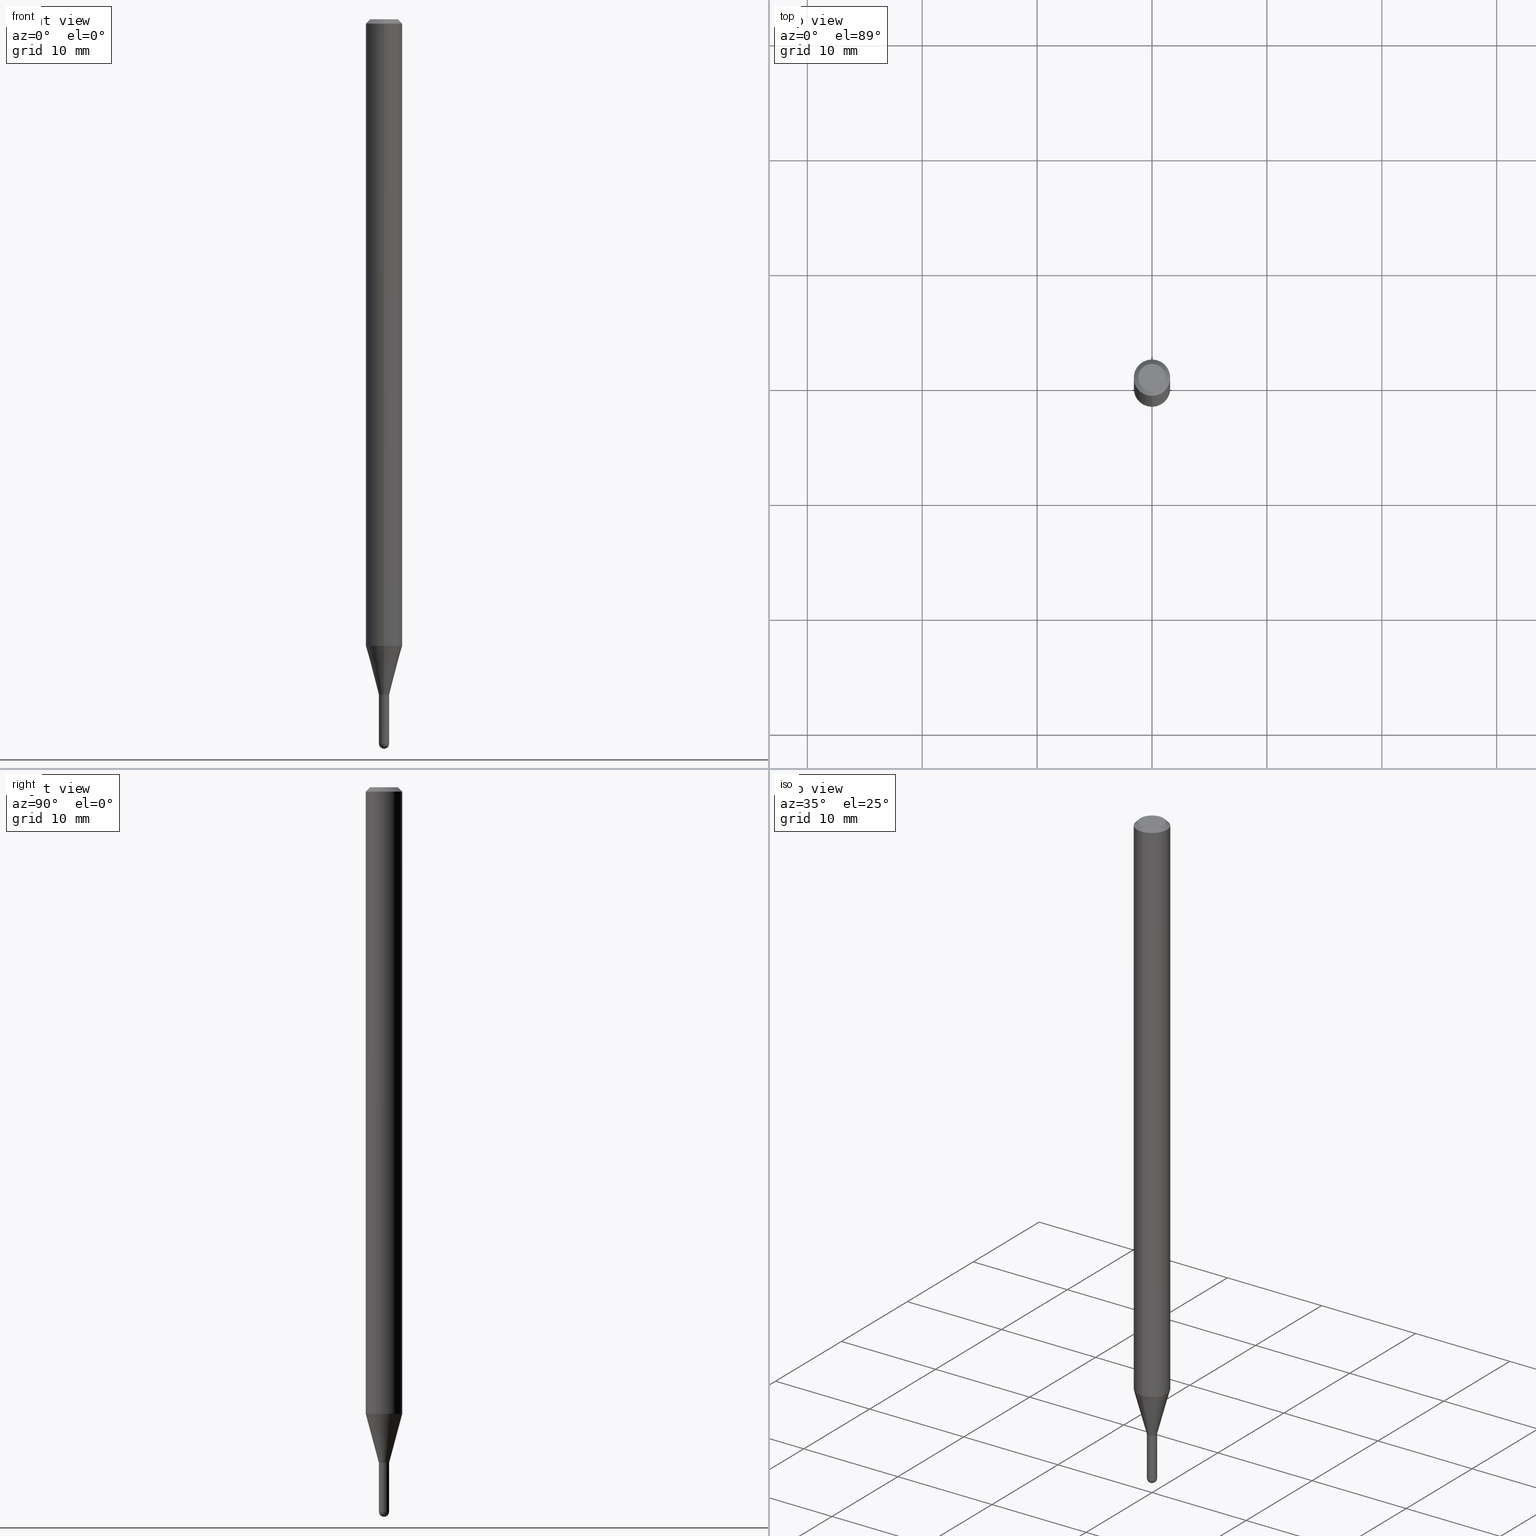
[diagram: canonical four-view strip — front | top / right | iso, engineering-drawing reading convention]
A machine part, canonical four-view strip (front | top / right | iso — engineering-drawing reading convention). The complete STEP part file that produces these views, byte-faithful:
ISO-10303-21;
HEADER;
FILE_DESCRIPTION (( 'STEP AP203' ),
    '1' );
FILE_NAME ('00958.STEP',
    '2024-03-07T19:13:39',
    ( '' ),
    ( '' ),
    'SwSTEP 2.0',
    'SolidWorks 2023',
    '' );
FILE_SCHEMA (( 'CONFIG_CONTROL_DESIGN' ));
ENDSEC;

DATA;
#1 = ADVANCED_FACE ( 'NONE', ( #255 ), #62, .T. ) ;
#2 = DIRECTION ( 'NONE',  ( -2.445468806185136597E-29, 3.491481338843145583E-15, 1.000000000000000000 ) ) ;
#3 = CC_DESIGN_APPROVAL ( #122, ( #225 ) ) ;
#4 = CARTESIAN_POINT ( 'NONE',  ( 6.070876311354603530E-29, -8.667602423678111529E-15, -2.482500000000000817 ) ) ;
#5 = ORIENTED_EDGE ( 'NONE', *, *, #463, .T. ) ;
#6 = PERSON_AND_ORGANIZATION ( #222, #326 ) ;
#7 = AXIS2_PLACEMENT_3D ( 'NONE', #343, #67, #501 ) ;
#8 = CARTESIAN_POINT ( 'NONE',  ( 5.661330320498851660E-29, -8.082679006489650230E-15, -2.314999999999999947 ) ) ;
#9 = VERTEX_POINT ( 'NONE', #303 ) ;
#10 = LINE ( 'NONE', #284, #259 ) ;
#11 = ORIENTED_EDGE ( 'NONE', *, *, #497, .F. ) ;
#12 = CC_DESIGN_SECURITY_CLASSIFICATION ( #225, ( #120 ) ) ;
#13 = CARTESIAN_POINT ( 'NONE',  ( -1.222018468594507938E-16, -0.01750000000000782874, -2.324500000000000455 ) ) ;
#14 = VERTEX_POINT ( 'NONE', #65 ) ;
#15 = CARTESIAN_POINT ( 'NONE',  ( -1.187103655206096848E-16, -0.01700000000000811973, -2.324999999999999734 ) ) ;
#16 = CIRCLE ( 'NONE', #117, 0.01749999999999965472 ) ;
#17 = ORIENTED_EDGE ( 'NONE', *, *, #56, .T. ) ;
#18 = AXIS2_PLACEMENT_3D ( 'NONE', #25, #379, #300 ) ;
#19 = COORDINATED_UNIVERSAL_TIME_OFFSET ( 5, 0, .BEHIND. ) ;
#20 = ORIENTED_EDGE ( 'NONE', *, *, #276, .T. ) ;
#21 = AXIS2_PLACEMENT_3D ( 'NONE', #296, #373, #97 ) ;
#22 = CARTESIAN_POINT ( 'NONE',  ( 3.668248587796234838E-31, -5.237157023643405199E-17, -0.01500000000000000812 ) ) ;
#23 = PRODUCT_RELATED_PRODUCT_CATEGORY ( 'detail', '', ( #426 ) ) ;
#24 = DIRECTION ( 'NONE',  ( -2.445499058530821695E-29, 3.491438015762267766E-15, 1.000000000000000000 ) ) ;
#25 = CARTESIAN_POINT ( 'NONE',  ( 5.685785311084159930E-29, -8.117593386647272142E-15, -2.324999999999999734 ) ) ;
#26 = CIRCLE ( 'NONE', #313, 0.01750000000000000167 ) ;
#27 = DIRECTION ( 'NONE',  ( 1.000000000000000000, 0.000000000000000000, 0.000000000000000000 ) ) ;
#28 = EDGE_CURVE ( 'NONE', #399, #374, #504, .T. ) ;
#29 = EDGE_LOOP ( 'NONE', ( #365, #183, #488, #243, #204 ) ) ;
#30 = APPROVAL_PERSON_ORGANIZATION ( #6, #122, #460 ) ;
#31 = DIRECTION ( 'NONE',  ( 6.982962677686265922E-15, 1.000000000000000000, 0.000000000000000000 ) ) ;
#32 = CARTESIAN_POINT ( 'NONE',  ( 5.685785311084159930E-29, -8.117593386647272142E-15, -2.324999999999999734 ) ) ;
#33 = PERSON_AND_ORGANIZATION ( #222, #326 ) ;
#34 = DIRECTION ( 'NONE',  ( -6.982962677686265922E-15, -1.000000000000000000, 3.491438015762267766E-15 ) ) ;
#35 = CIRCLE ( 'NONE', #369, 0.01750000000000001207 ) ;
#36 = VECTOR ( 'NONE', #240, 39.37007874015748143 ) ;
#37 = DIRECTION ( 'NONE',  ( -2.445499058530821695E-29, 3.491438015762267766E-15, 1.000000000000000000 ) ) ;
#38 = ORIENTED_EDGE ( 'NONE', *, *, #164, .F. ) ;
#39 = EDGE_CURVE ( 'NONE', #410, #397, #150, .T. ) ;
#40 = VECTOR ( 'NONE', #138, 39.37007874015748143 ) ;
#41 = DIRECTION ( 'NONE',  ( 1.000000000000000000, -6.982962677686303787E-15, 0.000000000000000000 ) ) ;
#42 = ORIENTED_EDGE ( 'NONE', *, *, #422, .F. ) ;
#43 = DIRECTION ( 'NONE',  ( -2.445468806185136597E-29, 3.491481338843145583E-15, 1.000000000000000000 ) ) ;
#44 = AXIS2_PLACEMENT_3D ( 'NONE', #274, #2, #317 ) ;
#45 = DIRECTION ( 'NONE',  ( -2.445499058530821695E-29, 3.491438015762267766E-15, 1.000000000000000000 ) ) ;
#46 = EDGE_CURVE ( 'NONE', #196, #9, #339, .T. ) ;
#47 = CARTESIAN_POINT ( 'NONE',  ( 1.207922650792738876E-16, 0.01699999999999188618, -2.324999999999999734 ) ) ;
#48 = LOCAL_TIME ( 14, 13, 39.00000000000000000, #118 ) ;
#49 = EDGE_LOOP ( 'NONE', ( #486, #96, #38, #324 ) ) ;
#50 = COORDINATED_UNIVERSAL_TIME_OFFSET ( 5, 0, .BEHIND. ) ;
#51 = DIRECTION ( 'NONE',  ( 1.000000000000000000, -6.982962677686303787E-15, 0.000000000000000000 ) ) ;
#52 = ORIENTED_EDGE ( 'NONE', *, *, #66, .T. ) ;
#53 = PERSON_AND_ORGANIZATION ( #222, #326 ) ;
#54 = FACE_OUTER_BOUND ( 'NONE', #510, .T. ) ;
#55 = VERTEX_POINT ( 'NONE', #213 ) ;
#56 = EDGE_CURVE ( 'NONE', #9, #196, #237, .T. ) ;
#57 = DIRECTION ( 'NONE',  ( -2.445468806185136597E-29, 3.491481338843145583E-15, 1.000000000000000000 ) ) ;
#58 = ORIENTED_EDGE ( 'NONE', *, *, #46, .T. ) ;
#59 = LINE ( 'NONE', #129, #104 ) ;
#60 = VERTEX_POINT ( 'NONE', #256 ) ;
#61 = APPROVAL_STATUS ( 'not_yet_approved' ) ;
#62 = CONICAL_SURFACE ( 'NONE', #193, 0.01700000000000000122, 0.7853981633974739252 ) ;
#63 = ORIENTED_EDGE ( 'NONE', *, *, #77, .T. ) ;
#64 = DIRECTION ( 'NONE',  ( -6.982962677686265922E-15, -1.000000000000000000, 3.491438015762267766E-15 ) ) ;
#65 = CARTESIAN_POINT ( 'NONE',  ( 0.01750000000000000513, -8.514850115103722472E-15, -2.482500000000000817 ) ) ;
#66 = EDGE_CURVE ( 'NONE', #248, #381, #219, .T. ) ;
#67 = DIRECTION ( 'NONE',  ( -2.445499058530821695E-29, 3.491438015762267766E-15, 1.000000000000000000 ) ) ;
#68 = CARTESIAN_POINT ( 'NONE',  ( 0.000000000000000000, 0.000000000000000000, 0.000000000000000000 ) ) ;
#69 = LINE ( 'NONE', #428, #289 ) ;
#70 = AXIS2_PLACEMENT_3D ( 'NONE', #268, #75, #509 ) ;
#71 = DIRECTION ( 'NONE',  ( 0.000000000000000000, 0.000000000000000000, 1.000000000000000000 ) ) ;
#72 = EDGE_LOOP ( 'NONE', ( #220, #200, #11, #438, #250 ) ) ;
#73 = DIRECTION ( 'NONE',  ( -7.105427357601000281E-15, -1.000000000000000000, 0.000000000000000000 ) ) ;
#74 = COORDINATED_UNIVERSAL_TIME_OFFSET ( 5, 0, .BEHIND. ) ;
#75 = DIRECTION ( 'NONE',  ( -2.445499058530821695E-29, 3.491438015762267766E-15, 1.000000000000000000 ) ) ;
#76 = ORIENTED_EDGE ( 'NONE', *, *, #187, .F. ) ;
#77 = EDGE_CURVE ( 'NONE', #381, #248, #236, .T. ) ;
#78 = CARTESIAN_POINT ( 'NONE',  ( -0.01750000000000000167, -8.268303289486194452E-15, -2.325000000000000178 ) ) ;
#79 = CC_DESIGN_PERSON_AND_ORGANIZATION_ASSIGNMENT ( #184, #128, ( #120 ) ) ;
#80 = CARTESIAN_POINT ( 'NONE',  ( 4.440892098501148782E-16, 0.06249999999999247824, -2.147057713659400235 ) ) ;
#81 = EDGE_CURVE ( 'NONE', #329, #94, #125, .T. ) ;
#82 = CARTESIAN_POINT ( 'NONE',  ( -1.222018468594506458E-16, -0.01750000000000773853, -2.314999999999999947 ) ) ;
#83 = AXIS2_PLACEMENT_3D ( 'NONE', #22, #180, #108 ) ;
#84 = DIRECTION ( 'NONE',  ( 6.982962677686265922E-15, 1.000000000000000000, -3.491438015762267766E-15 ) ) ;
#85 = CIRCLE ( 'NONE', #254, 0.01749999999999965472 ) ;
#86 = DIRECTION ( 'NONE',  ( 5.024295867788190974E-15, 0.7071067811865681119, 0.7071067811865270336 ) ) ;
#87 = ORIENTED_EDGE ( 'NONE', *, *, #81, .F. ) ;
#88 = CALENDAR_DATE ( 2024, 7, 3 ) ;
#89 = CARTESIAN_POINT ( 'NONE',  ( 1.222018468595665098E-16, 0.01749999999999188316, -2.325000000000000178 ) ) ;
#90 = ORIENTED_EDGE ( 'NONE', *, *, #77, .F. ) ;
#91 = AXIS2_PLACEMENT_3D ( 'NONE', #277, #203, #327 ) ;
#92 = CIRCLE ( 'NONE', #471, 0.01750000000000000167 ) ;
#93 = DIRECTION ( 'NONE',  ( -2.445499058530821695E-29, 3.491438015762267766E-15, 1.000000000000000000 ) ) ;
#94 = VERTEX_POINT ( 'NONE', #144 ) ;
#95 = DIRECTION ( 'NONE',  ( -6.982962677686265922E-15, -1.000000000000000000, 3.491438015762267766E-15 ) ) ;
#96 = ORIENTED_EDGE ( 'NONE', *, *, #39, .T. ) ;
#97 = DIRECTION ( 'NONE',  ( 1.000000000000000000, -6.982962677686248567E-15, 0.000000000000000000 ) ) ;
#98 = VERTEX_POINT ( 'NONE', #462 ) ;
#99 =( NAMED_UNIT ( * ) SI_UNIT ( $, .STERADIAN. ) SOLID_ANGLE_UNIT ( ) );
#100 = CC_DESIGN_PERSON_AND_ORGANIZATION_ASSIGNMENT ( #357, #468, ( #225 ) ) ;
#101 = CYLINDRICAL_SURFACE ( 'NONE', #391, 0.01749999999999965472 ) ;
#102 = DIRECTION ( 'NONE',  ( -2.445499058530821415E-29, 3.491438015762267766E-15, 1.000000000000000000 ) ) ;
#103 = ORIENTED_EDGE ( 'NONE', *, *, #478, .T. ) ;
#104 = VECTOR ( 'NONE', #242, 39.37007874015748143 ) ;
#105 = LENGTH_MEASURE_WITH_UNIT ( LENGTH_MEASURE( 0.02539999999999999897 ), #445 );
#106 = CARTESIAN_POINT ( 'NONE',  ( 0.000000000000000000, 0.000000000000000000, 0.000000000000000000 ) ) ;
#107 = MECHANICAL_CONTEXT ( 'NONE', #448, 'mechanical' ) ;
#108 = DIRECTION ( 'NONE',  ( -6.982962677686265922E-15, -1.000000000000000000, 3.483106191921935554E-15 ) ) ;
#109 = APPLICATION_CONTEXT ( 'configuration controlled 3d designs of mechanical parts and assemblies' ) ;
#110 = DIRECTION ( 'NONE',  ( -2.445499058530821695E-29, 3.491438015762267766E-15, 1.000000000000000000 ) ) ;
#111 = LOCAL_TIME ( 14, 13, 39.00000000000000000, #50 ) ;
#112 = EDGE_CURVE ( 'NONE', #98, #362, #16, .T. ) ;
#113 = FACE_OUTER_BOUND ( 'NONE', #318, .T. ) ;
#114 = DATE_AND_TIME ( #483, #464 ) ;
#115 = FACE_OUTER_BOUND ( 'NONE', #29, .T. ) ;
#116 = CC_DESIGN_DATE_AND_TIME_ASSIGNMENT ( #198, #188, ( #225 ) ) ;
#117 = AXIS2_PLACEMENT_3D ( 'NONE', #175, #110, #335 ) ;
#118 = COORDINATED_UNIVERSAL_TIME_OFFSET ( 5, 0, .BEHIND. ) ;
#119 = DIRECTION ( 'NONE',  ( 1.000000000000000000, -6.982962677686303787E-15, 0.000000000000000000 ) ) ;
#120 = PRODUCT_DEFINITION_FORMATION_WITH_SPECIFIED_SOURCE ( 'ANY', '', #426, .NOT_KNOWN. ) ;
#121 = DIRECTION ( 'NONE',  ( -1.000000000000000000, 7.105427357601001070E-15, -4.926315508542082329E-29 ) ) ;
#122 = APPROVAL ( #162, 'UNSPECIFIED' ) ;
#123 = CARTESIAN_POINT ( 'NONE',  ( -0.01750000000000000167, 1.243449787580175444E-16, -8.608136407946085539E-31 ) ) ;
#124 = ORIENTED_EDGE ( 'NONE', *, *, #328, .F. ) ;
#125 = CIRCLE ( 'NONE', #430, 0.01749999999999965472 ) ;
#126 = CARTESIAN_POINT ( 'NONE',  ( 3.316907271900976096E-16, 0.04749999999999999362, -1.702744944677941108E-16 ) ) ;
#127 = ORIENTED_EDGE ( 'NONE', *, *, #368, .T. ) ;
#128 = PERSON_AND_ORGANIZATION_ROLE ( 'design_supplier' ) ;
#129 = CARTESIAN_POINT ( 'NONE',  ( -1.187103655206096848E-16, -0.01700000000000811973, -2.324999999999999734 ) ) ;
#130 = ADVANCED_FACE ( 'NONE', ( #495 ), #101, .T. ) ;
#131 = VERTEX_POINT ( 'NONE', #252 ) ;
#132 = LINE ( 'NONE', #208, #467 ) ;
#133 = EDGE_LOOP ( 'NONE', ( #402, #423, #90, #76 ) ) ;
#134 = DIRECTION ( 'NONE',  ( -6.982962677686265922E-15, -1.000000000000000000, 3.491438015762267766E-15 ) ) ;
#135 = ADVANCED_BREP_SHAPE_REPRESENTATION ( '00958', ( #450, #461, #363 ), #230 ) ;
#136 = ORIENTED_EDGE ( 'NONE', *, *, #81, .T. ) ;
#137 = EDGE_CURVE ( 'NONE', #98, #248, #69, .T. ) ;
#138 = DIRECTION ( 'NONE',  ( -2.445499058530821695E-29, 3.491438015762267766E-15, 1.000000000000000000 ) ) ;
#139 = ORIENTED_EDGE ( 'NONE', *, *, #474, .F. ) ;
#140 = APPROVAL_DATE_TIME ( #494, #246 ) ;
#141 = ORIENTED_EDGE ( 'NONE', *, *, #171, .F. ) ;
#142 = AXIS2_PLACEMENT_3D ( 'NONE', #260, #340, #449 ) ;
#143 = DIRECTION ( 'NONE',  ( -6.982962677686265922E-15, -1.000000000000000000, 0.000000000000000000 ) ) ;
#144 = CARTESIAN_POINT ( 'NONE',  ( 1.243449787580714581E-16, 0.01749999999999148070, -2.324500000000000455 ) ) ;
#145 = EDGE_CURVE ( 'NONE', #94, #98, #465, .T. ) ;
#146 = FACE_OUTER_BOUND ( 'NONE', #371, .T. ) ;
#147 = DIRECTION ( 'NONE',  ( -2.445499058530821695E-29, 3.491438015762267766E-15, 1.000000000000000000 ) ) ;
#148 = DATE_AND_TIME ( #88, #316 ) ;
#149 = DIRECTION ( 'NONE',  ( -6.982962677686265133E-15, -1.000000000000000000, 0.000000000000000000 ) ) ;
#150 = CIRCLE ( 'NONE', #201, 0.01750000000000001207 ) ;
#151 = ADVANCED_FACE ( 'NONE', ( #113 ), #351, .T. ) ;
#152 = CC_DESIGN_APPROVAL ( #246, ( #281 ) ) ;
#153 = AXIS2_PLACEMENT_3D ( 'NONE', #411, #409, #31 ) ;
#154 = FACE_OUTER_BOUND ( 'NONE', #215, .T. ) ;
#155 = FACE_OUTER_BOUND ( 'NONE', #166, .T. ) ;
#156 = AXIS2_PLACEMENT_3D ( 'NONE', #385, #427, #34 ) ;
#157 = DIRECTION ( 'NONE',  ( -6.982962677686265922E-15, -1.000000000000000000, 0.000000000000000000 ) ) ;
#158 = LINE ( 'NONE', #82, #384 ) ;
#159 = VERTEX_POINT ( 'NONE', #226 ) ;
#160 = FACE_OUTER_BOUND ( 'NONE', #356, .T. ) ;
#161 = ORIENTED_EDGE ( 'NONE', *, *, #28, .T. ) ;
#162 = APPROVAL_STATUS ( 'not_yet_approved' ) ;
#163 = AXIS2_PLACEMENT_3D ( 'NONE', #348, #43, #119 ) ;
#164 = EDGE_CURVE ( 'NONE', #14, #397, #479, .T. ) ;
#165 = DIRECTION ( 'NONE',  ( -6.982962677686265922E-15, -1.000000000000000000, 0.000000000000000000 ) ) ;
#166 = EDGE_LOOP ( 'NONE', ( #42, #52, #446, #331 ) ) ;
#167 = CARTESIAN_POINT ( 'NONE',  ( 0.000000000000000000, 0.000000000000000000, 0.000000000000000000 ) ) ;
#168 = VERTEX_POINT ( 'NONE', #78 ) ;
#169 = FACE_OUTER_BOUND ( 'NONE', #412, .T. ) ;
#170 = EDGE_LOOP ( 'NONE', ( #136, #376, #124, #228 ) ) ;
#171 = EDGE_CURVE ( 'NONE', #397, #55, #92, .T. ) ;
#172 = CARTESIAN_POINT ( 'NONE',  ( -4.364351673553391609E-16, -0.06250000000000749401, -2.147057713659399347 ) ) ;
#173 = ORIENTED_EDGE ( 'NONE', *, *, #434, .T. ) ;
#174 = CALENDAR_DATE ( 2024, 7, 3 ) ;
#175 = CARTESIAN_POINT ( 'NONE',  ( 5.661330320498851660E-29, -8.082679006489650230E-15, -2.314999999999999947 ) ) ;
#176 = DIMENSIONAL_EXPONENTS ( 1.000000000000000000, 0.000000000000000000, 0.000000000000000000, 0.000000000000000000, 0.000000000000000000, 0.000000000000000000, 0.000000000000000000 ) ;
#177 = DIRECTION ( 'NONE',  ( -2.445499058530821695E-29, 3.491438015762267766E-15, 1.000000000000000000 ) ) ;
#178 = DIRECTION ( 'NONE',  ( -6.982962677686265922E-15, -1.000000000000000000, 3.491438015762267766E-15 ) ) ;
#179 = CIRCLE ( 'NONE', #306, 0.04749999999999999362 ) ;
#180 = DIRECTION ( 'NONE',  ( -2.445499058530821695E-29, 3.491438015762267766E-15, 1.000000000000000000 ) ) ;
#181 = CARTESIAN_POINT ( 'NONE',  ( 4.440892098500625669E-16, 0.06250000000000000000, -2.182148759851417354E-16 ) ) ;
#182 = ORIENTED_EDGE ( 'NONE', *, *, #368, .F. ) ;
#183 = ORIENTED_EDGE ( 'NONE', *, *, #288, .T. ) ;
#184 = PERSON_AND_ORGANIZATION ( #222, #326 ) ;
#185 = DIRECTION ( 'NONE',  ( 6.982962677686265922E-15, 1.000000000000000000, 0.000000000000000000 ) ) ;
#186 = AXIS2_PLACEMENT_3D ( 'NONE', #232, #388, #314 ) ;
#187 = EDGE_CURVE ( 'NONE', #362, #381, #158, .T. ) ;
#188 = DATE_TIME_ROLE ( 'classification_date' ) ;
#189 = CYLINDRICAL_SURFACE ( 'NONE', #400, 0.01750000000000000167 ) ;
#190 = SECURITY_CLASSIFICATION_LEVEL ( 'unclassified' ) ;
#191 = DIRECTION ( 'NONE',  ( -2.445499058530821695E-29, 3.491438015762267766E-15, 1.000000000000000000 ) ) ;
#192 = DIRECTION ( 'NONE',  ( 1.000000000000000000, -6.982962677686265922E-15, 4.876176775795936353E-29 ) ) ;
#193 = AXIS2_PLACEMENT_3D ( 'NONE', #32, #147, #143 ) ;
#194 = CARTESIAN_POINT ( 'NONE',  ( 4.440892098501154699E-16, 0.06249999999999995143, -0.01500000000000022669 ) ) ;
#195 = DIRECTION ( 'NONE',  ( -2.445468806185136877E-29, 3.491481338843145188E-15, 1.000000000000000000 ) ) ;
#196 = VERTEX_POINT ( 'NONE', #194 ) ;
#197 = EDGE_CURVE ( 'NONE', #60, #14, #212, .T. ) ;
#198 = DATE_AND_TIME ( #261, #111 ) ;
#199 = DIRECTION ( 'NONE',  ( 2.438088387897960049E-29, -3.491481338843145188E-15, -1.000000000000000000 ) ) ;
#200 = ORIENTED_EDGE ( 'NONE', *, *, #315, .T. ) ;
#201 = AXIS2_PLACEMENT_3D ( 'NONE', #294, #459, #298 ) ;
#202 = ADVANCED_FACE ( 'NONE', ( #115 ), #473, .T. ) ;
#203 = DIRECTION ( 'NONE',  ( 2.445499058530821695E-29, -3.491438015762267766E-15, -1.000000000000000000 ) ) ;
#204 = ORIENTED_EDGE ( 'NONE', *, *, #253, .F. ) ;
#205 = DIRECTION ( 'NONE',  ( -6.982962677686265133E-15, -1.000000000000000000, 0.000000000000000000 ) ) ;
#206 = ADVANCED_FACE ( 'NONE', ( #234 ), #360, .T. ) ;
#207 = EDGE_LOOP ( 'NONE', ( #435, #285 ) ) ;
#208 = CARTESIAN_POINT ( 'NONE',  ( 4.364351673553919652E-16, 0.06249999999999995143, -0.01500000000000022669 ) ) ;
#209 = ADVANCED_FACE ( 'NONE', ( #353 ), #227, .T. ) ;
#210 = ORIENTED_EDGE ( 'NONE', *, *, #56, .F. ) ;
#211 = CLOSED_SHELL ( 'NONE', ( #130, #1, #383, #352, #206, #151, #231, #216, #319, #489, #257, #336 ) ) ;
#212 = CIRCLE ( 'NONE', #186, 0.01750000000000000167 ) ;
#213 = CARTESIAN_POINT ( 'NONE',  ( -0.01750000000000000513, -8.268303289486194452E-15, -2.482500000000000817 ) ) ;
#214 = LINE ( 'NONE', #447, #40 ) ;
#215 = EDGE_LOOP ( 'NONE', ( #139, #334, #482, #58 ) ) ;
#216 = ADVANCED_FACE ( 'NONE', ( #154 ), #278, .T. ) ;
#217 = ORIENTED_EDGE ( 'NONE', *, *, #474, .T. ) ;
#218 = CARTESIAN_POINT ( 'NONE',  ( 5.685785311084159930E-29, -8.117593386647272142E-15, -2.324999999999999734 ) ) ;
#219 = CIRCLE ( 'NONE', #424, 0.06250000000000000000 ) ;
#220 = ORIENTED_EDGE ( 'NONE', *, *, #171, .T. ) ;
#221 = PERSON_AND_ORGANIZATION ( #222, #326 ) ;
#222 = PERSON ( 'UNSPECIFIED', 'UNSPECIFIED', 'UNSPECIFIED', ('UNSPECIFIED'), ('UNSPECIFIED'), ('UNSPECIFIED') ) ;
#223 = EDGE_CURVE ( 'NONE', #410, #60, #35, .T. ) ;
#224 = ORIENTED_EDGE ( 'NONE', *, *, #389, .F. ) ;
#225 = SECURITY_CLASSIFICATION ( '', '', #190 ) ;
#226 = CARTESIAN_POINT ( 'NONE',  ( 3.840629472727447874E-16, 0.04749999999999999362, -1.747056831868805136E-16 ) ) ;
#227 = SPHERICAL_SURFACE ( 'NONE', #344, 0.01750000000000001207 ) ;
#228 = ORIENTED_EDGE ( 'NONE', *, *, #463, .F. ) ;
#229 = DIRECTION ( 'NONE',  ( -2.445468806185136597E-29, 3.491481338843145583E-15, 1.000000000000000000 ) ) ;
#230 =( GEOMETRIC_REPRESENTATION_CONTEXT ( 3 ) GLOBAL_UNCERTAINTY_ASSIGNED_CONTEXT ( ( #403 ) ) GLOBAL_UNIT_ASSIGNED_CONTEXT ( ( #458, #496, #99 ) ) REPRESENTATION_CONTEXT ( 'NONE', 'WORKASPACE' ) );
#231 = ADVANCED_FACE ( 'NONE', ( #155 ), #390, .T. ) ;
#232 = CARTESIAN_POINT ( 'NONE',  ( 6.070876311354603530E-29, -8.667602423678111529E-15, -2.482500000000000817 ) ) ;
#233 = AXIS2_PLACEMENT_3D ( 'NONE', #502, #177, #452 ) ;
#234 = FACE_OUTER_BOUND ( 'NONE', #133, .T. ) ;
#235 = VECTOR ( 'NONE', #195, 39.37007874015748143 ) ;
#236 = CIRCLE ( 'NONE', #7, 0.06250000000000000000 ) ;
#237 = CIRCLE ( 'NONE', #142, 0.06250000000000000000 ) ;
#238 = CARTESIAN_POINT ( 'NONE',  ( -1.222018468594506458E-16, -0.01750000000000773853, -2.314999999999999947 ) ) ;
#239 = CALENDAR_DATE ( 2024, 7, 3 ) ;
#240 = DIRECTION ( 'NONE',  ( -2.445468806185136877E-29, 3.491481338843145188E-15, 1.000000000000000000 ) ) ;
#241 = ORIENTED_EDGE ( 'NONE', *, *, #112, .F. ) ;
#242 = DIRECTION ( 'NONE',  ( -4.937700262164674260E-15, -0.7071067811865632269, 0.7071067811865319186 ) ) ;
#243 = ORIENTED_EDGE ( 'NONE', *, *, #413, .T. ) ;
#244 = CARTESIAN_POINT ( 'NONE',  ( 1.225686219186729070E-16, 0.01699999999999188618, -2.324999999999999734 ) ) ;
#245 = EDGE_LOOP ( 'NONE', ( #20, #103 ) ) ;
#246 = APPROVAL ( #61, 'UNSPECIFIED' ) ;
#247 = CARTESIAN_POINT ( 'NONE',  ( 0.01750000000000000167, -8.239895959669823433E-15, -2.325000000000000178 ) ) ;
#248 = VERTEX_POINT ( 'NONE', #80 ) ;
#249 = PERSON_AND_ORGANIZATION ( #222, #326 ) ;
#250 = ORIENTED_EDGE ( 'NONE', *, *, #164, .T. ) ;
#251 = AXIS2_PLACEMENT_3D ( 'NONE', #309, #267, #192 ) ;
#252 = CARTESIAN_POINT ( 'NONE',  ( -3.773273898774340269E-16, -0.04749999999999999362, 1.569809283105349271E-16 ) ) ;
#253 = EDGE_CURVE ( 'NONE', #168, #367, #451, .T. ) ;
#254 = AXIS2_PLACEMENT_3D ( 'NONE', #8, #286, #165 ) ;
#255 = FACE_OUTER_BOUND ( 'NONE', #359, .T. ) ;
#256 = CARTESIAN_POINT ( 'NONE',  ( -1.243449787579568760E-16, -0.01750000000000867528, -2.482500000000000817 ) ) ;
#257 = ADVANCED_FACE ( 'NONE', ( #507 ), #441, .T. ) ;
#258 = DESIGN_CONTEXT ( 'detailed design', #109, 'design' ) ;
#259 = VECTOR ( 'NONE', #333, 39.37007874015748143 ) ;
#260 = CARTESIAN_POINT ( 'NONE',  ( 3.668248587796234838E-31, -5.237157023643405199E-17, -0.01500000000000000812 ) ) ;
#261 = CALENDAR_DATE ( 2024, 7, 3 ) ;
#262 = CARTESIAN_POINT ( 'NONE',  ( 0.000000000000000000, 0.000000000000000000, 0.000000000000000000 ) ) ;
#263 = CIRCLE ( 'NONE', #325, 0.04749999999999999362 ) ;
#264 = AXIS2_PLACEMENT_3D ( 'NONE', #355, #480, #134 ) ;
#265 = APPROVAL_PERSON_ORGANIZATION ( #249, #246, #370 ) ;
#266 = VECTOR ( 'NONE', #24, 39.37007874015748143 ) ;
#267 = DIRECTION ( 'NONE',  ( -2.445468806185136597E-29, 3.491481338843145583E-15, 1.000000000000000000 ) ) ;
#268 = CARTESIAN_POINT ( 'NONE',  ( 5.661330320498851660E-29, -8.082679006489650230E-15, -2.314999999999999947 ) ) ;
#269 = ADVANCED_FACE ( 'NONE', ( #345 ), #189, .T. ) ;
#270 = AXIS2_PLACEMENT_3D ( 'NONE', #126, #361, #84 ) ;
#271 = CARTESIAN_POINT ( 'NONE',  ( 6.069379770348537778E-29, -8.669745555576616428E-15, -2.482499999999999929 ) ) ;
#272 = EDGE_CURVE ( 'NONE', #381, #9, #10, .T. ) ;
#273 = APPROVAL_PERSON_ORGANIZATION ( #279, #444, #311 ) ;
#274 = CARTESIAN_POINT ( 'NONE',  ( 5.685714974380442812E-29, -8.117694112810313450E-15, -2.325000000000000178 ) ) ;
#275 = CONICAL_SURFACE ( 'NONE', #91, 0.06250000000000000000, 0.7853981633974483900 ) ;
#276 = EDGE_CURVE ( 'NONE', #159, #131, #179, .T. ) ;
#277 = CARTESIAN_POINT ( 'NONE',  ( 3.668248587796234838E-31, -5.237157023643405199E-17, -0.01500000000000000812 ) ) ;
#278 = CONICAL_SURFACE ( 'NONE', #321, 0.06250000000000000000, 0.7853981633974483900 ) ;
#279 = PERSON_AND_ORGANIZATION ( #222, #326 ) ;
#280 = VECTOR ( 'NONE', #86, 39.37007874015748143 ) ;
#281 = PRODUCT_DEFINITION ( 'UNKNOWN', '', #120, #258 ) ;
#282 = CARTESIAN_POINT ( 'NONE',  ( 5.684562561554895470E-29, -8.115847667639392861E-15, -2.324500000000000455 ) ) ;
#283 = EDGE_LOOP ( 'NONE', ( #63, #498, #210, #338 ) ) ;
#284 = CARTESIAN_POINT ( 'NONE',  ( -4.364351673553916201E-16, -0.06250000000000000000, 2.182148759851417354E-16 ) ) ;
#285 = ORIENTED_EDGE ( 'NONE', *, *, #253, .T. ) ;
#286 = DIRECTION ( 'NONE',  ( -2.445499058530821695E-29, 3.491438015762267766E-15, 1.000000000000000000 ) ) ;
#287 = ORIENTED_EDGE ( 'NONE', *, *, #187, .T. ) ;
#288 = EDGE_CURVE ( 'NONE', #55, #60, #26, .T. ) ;
#289 = VECTOR ( 'NONE', #350, 39.37007874015748143 ) ;
#290 = FACE_OUTER_BOUND ( 'NONE', #283, .T. ) ;
#291 = ORIENTED_EDGE ( 'NONE', *, *, #478, .F. ) ;
#292 = APPLICATION_PROTOCOL_DEFINITION ( 'international standard', 'config_control_design', 1994, #109 ) ;
#293 = ORIENTED_EDGE ( 'NONE', *, *, #112, .T. ) ;
#294 = CARTESIAN_POINT ( 'NONE',  ( 6.069379770348537778E-29, -8.669745555576616428E-15, -2.482499999999999929 ) ) ;
#295 = AXIS2_PLACEMENT_3D ( 'NONE', #312, #45, #157 ) ;
#296 = CARTESIAN_POINT ( 'NONE',  ( 5.685714974380442812E-29, -8.117694112810313450E-15, -2.325000000000000178 ) ) ;
#297 = EDGE_CURVE ( 'NONE', #94, #329, #377, .T. ) ;
#298 = DIRECTION ( 'NONE',  ( 6.982962677686265922E-15, 1.000000000000000000, 0.000000000000000000 ) ) ;
#299 = DIRECTION ( 'NONE',  ( -2.445499058530821695E-29, 3.491438015762267766E-15, 1.000000000000000000 ) ) ;
#300 = DIRECTION ( 'NONE',  ( -6.982962677686265922E-15, -1.000000000000000000, 0.000000000000000000 ) ) ;
#301 = ADVANCED_FACE ( 'NONE', ( #323 ), #364, .F. ) ;
#302 = PLANE ( 'NONE',  #454 ) ;
#303 = CARTESIAN_POINT ( 'NONE',  ( -4.364351673553912750E-16, -0.06250000000000005551, -0.01499999999999979128 ) ) ;
#304 = CLOSED_SHELL ( 'NONE', ( #269, #416, #301, #209, #202 ) ) ;
#305 = EDGE_CURVE ( 'NONE', #399, #94, #396, .T. ) ;
#306 = AXIS2_PLACEMENT_3D ( 'NONE', #437, #93, #433 ) ;
#307 = COORDINATED_UNIVERSAL_TIME_OFFSET ( 5, 0, .BEHIND. ) ;
#308 = DIRECTION ( 'NONE',  ( -6.982962677686265922E-15, -1.000000000000000000, 4.370956789862821150E-15 ) ) ;
#309 = CARTESIAN_POINT ( 'NONE',  ( 0.000000000000000000, 0.000000000000000000, 0.000000000000000000 ) ) ;
#310 = DIRECTION ( 'NONE',  ( 1.000000000000000000, -6.982962677686265922E-15, 4.876176775795936353E-29 ) ) ;
#311 = APPROVAL_ROLE ( '' ) ;
#312 = CARTESIAN_POINT ( 'NONE',  ( 5.661330320498851660E-29, -8.082679006489650230E-15, -2.314999999999999947 ) ) ;
#313 = AXIS2_PLACEMENT_3D ( 'NONE', #4, #57, #51 ) ;
#314 = DIRECTION ( 'NONE',  ( 1.000000000000000000, -6.982962677686303787E-15, 0.000000000000000000 ) ) ;
#315 = EDGE_CURVE ( 'NONE', #55, #168, #330, .T. ) ;
#316 = LOCAL_TIME ( 14, 13, 39.00000000000000000, #74 ) ;
#317 = DIRECTION ( 'NONE',  ( 1.000000000000000000, -6.982962677686248567E-15, 0.000000000000000000 ) ) ;
#318 = EDGE_LOOP ( 'NONE', ( #320, #293, #287, #346 ) ) ;
#319 = ADVANCED_FACE ( 'NONE', ( #358 ), #487, .F. ) ;
#320 = ORIENTED_EDGE ( 'NONE', *, *, #137, .F. ) ;
#321 = AXIS2_PLACEMENT_3D ( 'NONE', #425, #475, #511 ) ;
#322 = SHAPE_DEFINITION_REPRESENTATION ( #429, #135 ) ;
#323 = FACE_OUTER_BOUND ( 'NONE', #207, .T. ) ;
#324 = ORIENTED_EDGE ( 'NONE', *, *, #197, .F. ) ;
#325 = AXIS2_PLACEMENT_3D ( 'NONE', #337, #299, #341 ) ;
#326 = ORGANIZATION ( 'UNSPECIFIED', 'UNSPECIFIED', '' ) ;
#327 = DIRECTION ( 'NONE',  ( 6.982962677686265922E-15, 1.000000000000000000, -3.483106191921935554E-15 ) ) ;
#328 = EDGE_CURVE ( 'NONE', #362, #98, #85, .T. ) ;
#329 = VERTEX_POINT ( 'NONE', #13 ) ;
#330 = LINE ( 'NONE', #123, #36 ) ;
#331 = ORIENTED_EDGE ( 'NONE', *, *, #46, .F. ) ;
#332 = AXIS2_PLACEMENT_3D ( 'NONE', #282, #398, #205 ) ;
#333 = DIRECTION ( 'NONE',  ( -2.445499058530821695E-29, 3.491438015762267766E-15, 1.000000000000000000 ) ) ;
#334 = ORIENTED_EDGE ( 'NONE', *, *, #276, .F. ) ;
#335 = DIRECTION ( 'NONE',  ( -6.982962677686265922E-15, -1.000000000000000000, 0.000000000000000000 ) ) ;
#336 = ADVANCED_FACE ( 'NONE', ( #169 ), #485, .T. ) ;
#337 = CARTESIAN_POINT ( 'NONE',  ( 2.167293568139635393E-46, -3.094244149767029773E-32, -8.862377438172790176E-18 ) ) ;
#338 = ORIENTED_EDGE ( 'NONE', *, *, #272, .F. ) ;
#339 = CIRCLE ( 'NONE', #83, 0.06250000000000000000 ) ;
#340 = DIRECTION ( 'NONE',  ( -2.445499058530821695E-29, 3.491438015762267766E-15, 1.000000000000000000 ) ) ;
#341 = DIRECTION ( 'NONE',  ( -6.982962677686266711E-15, -1.000000000000000000, 3.491438015762268161E-15 ) ) ;
#342 = ORIENTED_EDGE ( 'NONE', *, *, #223, .T. ) ;
#343 = CARTESIAN_POINT ( 'NONE',  ( 5.250627617365400898E-29, -7.496318923506046239E-15, -2.147057713659399791 ) ) ;
#344 = AXIS2_PLACEMENT_3D ( 'NONE', #271, #349, #185 ) ;
#345 = FACE_OUTER_BOUND ( 'NONE', #72, .T. ) ;
#346 = ORIENTED_EDGE ( 'NONE', *, *, #66, .F. ) ;
#347 = APPROVAL_DATE_TIME ( #148, #122 ) ;
#348 = CARTESIAN_POINT ( 'NONE',  ( 6.070876311354603530E-29, -8.667602423678111529E-15, -2.482500000000000817 ) ) ;
#349 = DIRECTION ( 'NONE',  ( -1.000000000000000000, 6.982962677686265922E-15, -4.883557194083112901E-29 ) ) ;
#350 = DIRECTION ( 'NONE',  ( 1.839019923739599526E-15, 0.2588190451025248473, 0.9659258262890670910 ) ) ;
#351 = CONICAL_SURFACE ( 'NONE', #295, 0.01749999999999965472, 0.2617993877991501850 ) ;
#352 = ADVANCED_FACE ( 'NONE', ( #290 ), #442, .T. ) ;
#353 = FACE_OUTER_BOUND ( 'NONE', #49, .T. ) ;
#354 = VECTOR ( 'NONE', #378, 39.37007874015748143 ) ;
#355 = CARTESIAN_POINT ( 'NONE',  ( 0.000000000000000000, 0.000000000000000000, 0.000000000000000000 ) ) ;
#356 = EDGE_LOOP ( 'NONE', ( #432, #342, #493, #141 ) ) ;
#357 = PERSON_AND_ORGANIZATION ( #222, #326 ) ;
#358 = FACE_OUTER_BOUND ( 'NONE', #245, .T. ) ;
#359 = EDGE_LOOP ( 'NONE', ( #173, #491, #87, #182 ) ) ;
#360 = CONICAL_SURFACE ( 'NONE', #70, 0.01749999999999965472, 0.2617993877991501850 ) ;
#361 = DIRECTION ( 'NONE',  ( 2.445499058530821415E-29, -3.491438015762267766E-15, -1.000000000000000000 ) ) ;
#362 = VERTEX_POINT ( 'NONE', #238 ) ;
#363 = AXIS2_PLACEMENT_3D ( 'NONE', #68, #71, #27 ) ;
#364 = PLANE ( 'NONE',  #481 ) ;
#365 = ORIENTED_EDGE ( 'NONE', *, *, #315, .F. ) ;
#366 = CARTESIAN_POINT ( 'NONE',  ( 1.222018468595703801E-16, 0.01749999999999134193, -2.482500000000000817 ) ) ;
#367 = VERTEX_POINT ( 'NONE', #247 ) ;
#368 = EDGE_CURVE ( 'NONE', #374, #329, #59, .T. ) ;
#369 = AXIS2_PLACEMENT_3D ( 'NONE', #512, #121, #73 ) ;
#370 = APPROVAL_ROLE ( '' ) ;
#371 = EDGE_LOOP ( 'NONE', ( #408, #470 ) ) ;
#372 = CC_DESIGN_PERSON_AND_ORGANIZATION_ASSIGNMENT ( #33, #508, ( #281 ) ) ;
#373 = DIRECTION ( 'NONE',  ( -2.445468806185136597E-29, 3.491481338843145583E-15, 1.000000000000000000 ) ) ;
#374 = VERTEX_POINT ( 'NONE', #15 ) ;
#375 = LINE ( 'NONE', #181, #266 ) ;
#376 = ORIENTED_EDGE ( 'NONE', *, *, #145, .T. ) ;
#377 = CIRCLE ( 'NONE', #332, 0.01749999999999965472 ) ;
#378 = DIRECTION ( 'NONE',  ( -4.851104656540964275E-15, -0.7071067811865500152, -0.7071067811865450192 ) ) ;
#379 = DIRECTION ( 'NONE',  ( -2.445499058530821695E-29, 3.491438015762267766E-15, 1.000000000000000000 ) ) ;
#380 = SPHERICAL_SURFACE ( 'NONE', #153, 0.01750000000000001207 ) ;
#381 = VERTEX_POINT ( 'NONE', #172 ) ;
#382 = CARTESIAN_POINT ( 'NONE',  ( 6.070876311354603530E-29, -8.667602423678111529E-15, -2.482500000000000817 ) ) ;
#383 = ADVANCED_FACE ( 'NONE', ( #54 ), #275, .T. ) ;
#384 = VECTOR ( 'NONE', #387, 39.37007874015749564 ) ;
#385 = CARTESIAN_POINT ( 'NONE',  ( 0.000000000000000000, 0.000000000000000000, 0.000000000000000000 ) ) ;
#386 = CC_DESIGN_PERSON_AND_ORGANIZATION_ASSIGNMENT ( #53, #420, ( #120 ) ) ;
#387 = DIRECTION ( 'NONE',  ( -1.807323732225329350E-15, -0.2588190451025180194, 0.9659258262890689783 ) ) ;
#388 = DIRECTION ( 'NONE',  ( -2.445468806185136597E-29, 3.491481338843145583E-15, 1.000000000000000000 ) ) ;
#389 = EDGE_CURVE ( 'NONE', #159, #196, #132, .T. ) ;
#390 = CYLINDRICAL_SURFACE ( 'NONE', #156, 0.06250000000000000000 ) ;
#391 = AXIS2_PLACEMENT_3D ( 'NONE', #106, #414, #178 ) ;
#392 = CARTESIAN_POINT ( 'NONE',  ( 0.01750000000000000167, -1.222018468595096625E-16, 8.533309357642889039E-31 ) ) ;
#393 = CIRCLE ( 'NONE', #21, 0.01750000000000000167 ) ;
#394 = APPROVAL_DATE_TIME ( #436, #444 ) ;
#395 = AXIS2_PLACEMENT_3D ( 'NONE', #167, #405, #95 ) ;
#396 = LINE ( 'NONE', #47, #280 ) ;
#397 = VERTEX_POINT ( 'NONE', #366 ) ;
#398 = DIRECTION ( 'NONE',  ( -2.445499058530821695E-29, 3.491438015762267766E-15, 1.000000000000000000 ) ) ;
#399 = VERTEX_POINT ( 'NONE', #244 ) ;
#400 = AXIS2_PLACEMENT_3D ( 'NONE', #262, #419, #310 ) ;
#401 = LINE ( 'NONE', #392, #235 ) ;
#402 = ORIENTED_EDGE ( 'NONE', *, *, #328, .T. ) ;
#403 = UNCERTAINTY_MEASURE_WITH_UNIT (LENGTH_MEASURE( 1.000000000000000082E-05 ), #458, 'distance_accuracy_value', 'NONE');
#404 = CIRCLE ( 'NONE', #233, 0.01700000000000000122 ) ;
#405 = DIRECTION ( 'NONE',  ( -2.445499058530821695E-29, 3.491438015762267766E-15, 1.000000000000000000 ) ) ;
#406 = ORIENTED_EDGE ( 'NONE', *, *, #145, .F. ) ;
#407 = CARTESIAN_POINT ( 'NONE',  ( -4.287811248607203282E-16, -0.06250000000000005551, -0.01499999999999979128 ) ) ;
#408 = ORIENTED_EDGE ( 'NONE', *, *, #434, .F. ) ;
#409 = DIRECTION ( 'NONE',  ( -1.000000000000000000, 6.982962677686265922E-15, -4.883557194083112901E-29 ) ) ;
#410 = VERTEX_POINT ( 'NONE', #431 ) ;
#411 = CARTESIAN_POINT ( 'NONE',  ( 6.069379770348537778E-29, -8.669745555576616428E-15, -2.482499999999999929 ) ) ;
#412 = EDGE_LOOP ( 'NONE', ( #406, #466, #5, #241 ) ) ;
#413 = EDGE_CURVE ( 'NONE', #14, #367, #401, .T. ) ;
#414 = DIRECTION ( 'NONE',  ( -2.445499058530821695E-29, 3.491438015762267766E-15, 1.000000000000000000 ) ) ;
#415 = AXIS2_PLACEMENT_3D ( 'NONE', #421, #37, #477 ) ;
#416 = ADVANCED_FACE ( 'NONE', ( #160 ), #380, .T. ) ;
#417 = CARTESIAN_POINT ( 'NONE',  ( 5.250627617365400898E-29, -7.496318923506046239E-15, -2.147057713659399791 ) ) ;
#418 = APPROVAL_STATUS ( 'not_yet_approved' ) ;
#419 = DIRECTION ( 'NONE',  ( -2.445468806185136597E-29, 3.491481338843145583E-15, 1.000000000000000000 ) ) ;
#420 = PERSON_AND_ORGANIZATION_ROLE ( 'creator' ) ;
#421 = CARTESIAN_POINT ( 'NONE',  ( 5.685785311084159930E-29, -8.117593386647272142E-15, -2.324999999999999734 ) ) ;
#422 = EDGE_CURVE ( 'NONE', #248, #196, #375, .T. ) ;
#423 = ORIENTED_EDGE ( 'NONE', *, *, #137, .T. ) ;
#424 = AXIS2_PLACEMENT_3D ( 'NONE', #417, #453, #308 ) ;
#425 = CARTESIAN_POINT ( 'NONE',  ( 3.668248587796234838E-31, -5.237157023643405199E-17, -0.01500000000000000812 ) ) ;
#426 = PRODUCT ( '00958', '00958', '', ( #107 ) ) ;
#427 = DIRECTION ( 'NONE',  ( -2.445499058530821695E-29, 3.491438015762267766E-15, 1.000000000000000000 ) ) ;
#428 = CARTESIAN_POINT ( 'NONE',  ( 1.243449787580716799E-16, 0.01749999999999157438, -2.314999999999999947 ) ) ;
#429 = PRODUCT_DEFINITION_SHAPE ( 'NONE', 'NONE',  #281 ) ;
#430 = AXIS2_PLACEMENT_3D ( 'NONE', #505, #457, #149 ) ;
#431 = CARTESIAN_POINT ( 'NONE',  ( 6.112923744959810298E-29, -8.729774913057118970E-15, -2.500000000000000000 ) ) ;
#432 = ORIENTED_EDGE ( 'NONE', *, *, #39, .F. ) ;
#433 = DIRECTION ( 'NONE',  ( -6.982962677686266711E-15, -1.000000000000000000, 3.491438015762268161E-15 ) ) ;
#434 = EDGE_CURVE ( 'NONE', #374, #399, #404, .T. ) ;
#435 = ORIENTED_EDGE ( 'NONE', *, *, #497, .T. ) ;
#436 = DATE_AND_TIME ( #239, #48 ) ;
#437 = CARTESIAN_POINT ( 'NONE',  ( 2.167293568139635393E-46, -3.094244149767029773E-32, -8.862377438172790176E-18 ) ) ;
#438 = ORIENTED_EDGE ( 'NONE', *, *, #413, .F. ) ;
#439 = DIRECTION ( 'NONE',  ( 4.937700262164548042E-15, 0.7071067811865451302, -0.7071067811865499042 ) ) ;
#440 = ORIENTED_EDGE ( 'NONE', *, *, #305, .F. ) ;
#441 = CONICAL_SURFACE ( 'NONE', #415, 0.01700000000000000122, 0.7853981633974739252 ) ;
#442 = CYLINDRICAL_SURFACE ( 'NONE', #395, 0.06250000000000000000 ) ;
#443 = EDGE_LOOP ( 'NONE', ( #440, #161, #127, #503 ) ) ;
#444 = APPROVAL ( #418, 'UNSPECIFIED' ) ;
#445 =( LENGTH_UNIT ( ) NAMED_UNIT ( * ) SI_UNIT ( $, .METRE. ) );
#446 = ORIENTED_EDGE ( 'NONE', *, *, #272, .T. ) ;
#447 = CARTESIAN_POINT ( 'NONE',  ( -1.222018468595072466E-16, -0.01749999999999965472, 6.110016527583848240E-17 ) ) ;
#448 = APPLICATION_CONTEXT ( 'configuration controlled 3d designs of mechanical parts and assemblies' ) ;
#449 = DIRECTION ( 'NONE',  ( -6.982962677686265922E-15, -1.000000000000000000, 3.483106191921935554E-15 ) ) ;
#450 = MANIFOLD_SOLID_BREP ( 'Body-Move/Copy2[1]', #304 ) ;
#451 = CIRCLE ( 'NONE', #44, 0.01750000000000000167 ) ;
#452 = DIRECTION ( 'NONE',  ( -6.982962677686265922E-15, -1.000000000000000000, 0.000000000000000000 ) ) ;
#453 = DIRECTION ( 'NONE',  ( -2.445499058530821695E-29, 3.491438015762267766E-15, 1.000000000000000000 ) ) ;
#454 = AXIS2_PLACEMENT_3D ( 'NONE', #218, #102, #64 ) ;
#455 = CC_DESIGN_APPROVAL ( #444, ( #120 ) ) ;
#456 = LINE ( 'NONE', #407, #354 ) ;
#457 = DIRECTION ( 'NONE',  ( -2.445499058530821695E-29, 3.491438015762267766E-15, 1.000000000000000000 ) ) ;
#458 =( CONVERSION_BASED_UNIT ( 'INCH', #105 ) LENGTH_UNIT ( ) NAMED_UNIT ( #176 ) );
#459 = DIRECTION ( 'NONE',  ( 1.000000000000000000, -6.982962677686265922E-15, 4.883557194083112340E-29 ) ) ;
#460 = APPROVAL_ROLE ( '' ) ;
#461 = MANIFOLD_SOLID_BREP ( 'Body-Move/Copy2[2]', #211 ) ;
#462 = CARTESIAN_POINT ( 'NONE',  ( 2.842170943040934763E-16, 0.01749999999999157438, -2.314999999999999947 ) ) ;
#463 = EDGE_CURVE ( 'NONE', #329, #362, #214, .T. ) ;
#464 = LOCAL_TIME ( 14, 13, 39.00000000000000000, #307 ) ;
#465 = LINE ( 'NONE', #469, #506 ) ;
#466 = ORIENTED_EDGE ( 'NONE', *, *, #297, .T. ) ;
#467 = VECTOR ( 'NONE', #439, 39.37007874015748143 ) ;
#468 = PERSON_AND_ORGANIZATION_ROLE ( 'classification_officer' ) ;
#469 = CARTESIAN_POINT ( 'NONE',  ( 1.243449787580150792E-16, 0.01749999999999965472, -6.110016527583848240E-17 ) ) ;
#470 = ORIENTED_EDGE ( 'NONE', *, *, #28, .F. ) ;
#471 = AXIS2_PLACEMENT_3D ( 'NONE', #382, #229, #41 ) ;
#472 = DATE_TIME_ROLE ( 'creation_date' ) ;
#473 = CYLINDRICAL_SURFACE ( 'NONE', #251, 0.01750000000000000167 ) ;
#474 = EDGE_CURVE ( 'NONE', #131, #9, #456, .T. ) ;
#475 = DIRECTION ( 'NONE',  ( 2.445499058530821695E-29, -3.491438015762267766E-15, -1.000000000000000000 ) ) ;
#476 = LOCAL_TIME ( 14, 13, 39.00000000000000000, #19 ) ;
#477 = DIRECTION ( 'NONE',  ( -6.982962677686265922E-15, -1.000000000000000000, 0.000000000000000000 ) ) ;
#478 = EDGE_CURVE ( 'NONE', #131, #159, #263, .T. ) ;
#479 = CIRCLE ( 'NONE', #163, 0.01750000000000000167 ) ;
#480 = DIRECTION ( 'NONE',  ( -2.445499058530821695E-29, 3.491438015762267766E-15, 1.000000000000000000 ) ) ;
#481 = AXIS2_PLACEMENT_3D ( 'NONE', #89, #199, #490 ) ;
#482 = ORIENTED_EDGE ( 'NONE', *, *, #389, .T. ) ;
#483 = CALENDAR_DATE ( 2024, 7, 3 ) ;
#484 = CC_DESIGN_PERSON_AND_ORGANIZATION_ASSIGNMENT ( #221, #492, ( #426 ) ) ;
#485 = CYLINDRICAL_SURFACE ( 'NONE', #264, 0.01749999999999965472 ) ;
#486 = ORIENTED_EDGE ( 'NONE', *, *, #223, .F. ) ;
#487 = PLANE ( 'NONE',  #270 ) ;
#488 = ORIENTED_EDGE ( 'NONE', *, *, #197, .T. ) ;
#489 = ADVANCED_FACE ( 'NONE', ( #146 ), #302, .F. ) ;
#490 = DIRECTION ( 'NONE',  ( -1.000000000000000000, 6.982962677686265922E-15, -4.876176775795935793E-29 ) ) ;
#491 = ORIENTED_EDGE ( 'NONE', *, *, #305, .T. ) ;
#492 = PERSON_AND_ORGANIZATION_ROLE ( 'design_owner' ) ;
#493 = ORIENTED_EDGE ( 'NONE', *, *, #288, .F. ) ;
#494 = DATE_AND_TIME ( #174, #476 ) ;
#495 = FACE_OUTER_BOUND ( 'NONE', #170, .T. ) ;
#496 =( NAMED_UNIT ( * ) PLANE_ANGLE_UNIT ( ) SI_UNIT ( $, .RADIAN. ) );
#497 = EDGE_CURVE ( 'NONE', #367, #168, #393, .T. ) ;
#498 = ORIENTED_EDGE ( 'NONE', *, *, #422, .T. ) ;
#499 = APPLICATION_PROTOCOL_DEFINITION ( 'international standard', 'config_control_design', 1994, #448 ) ;
#500 = CC_DESIGN_DATE_AND_TIME_ASSIGNMENT ( #114, #472, ( #281 ) ) ;
#501 = DIRECTION ( 'NONE',  ( -6.982962677686265922E-15, -1.000000000000000000, 4.370956789862821150E-15 ) ) ;
#502 = CARTESIAN_POINT ( 'NONE',  ( 5.685785311084159930E-29, -8.117593386647272142E-15, -2.324999999999999734 ) ) ;
#503 = ORIENTED_EDGE ( 'NONE', *, *, #297, .F. ) ;
#504 = CIRCLE ( 'NONE', #18, 0.01700000000000000122 ) ;
#505 = CARTESIAN_POINT ( 'NONE',  ( 5.684562561554895470E-29, -8.115847667639392861E-15, -2.324500000000000455 ) ) ;
#506 = VECTOR ( 'NONE', #191, 39.37007874015748143 ) ;
#507 = FACE_OUTER_BOUND ( 'NONE', #443, .T. ) ;
#508 = PERSON_AND_ORGANIZATION_ROLE ( 'creator' ) ;
#509 = DIRECTION ( 'NONE',  ( -6.982962677686265922E-15, -1.000000000000000000, 0.000000000000000000 ) ) ;
#510 = EDGE_LOOP ( 'NONE', ( #291, #217, #17, #224 ) ) ;
#511 = DIRECTION ( 'NONE',  ( 6.982962677686265922E-15, 1.000000000000000000, -3.483106191921935554E-15 ) ) ;
#512 = CARTESIAN_POINT ( 'NONE',  ( 6.069379770348537778E-29, -8.669745555576616428E-15, -2.482499999999999929 ) ) ;
ENDSEC;
END-ISO-10303-21;
